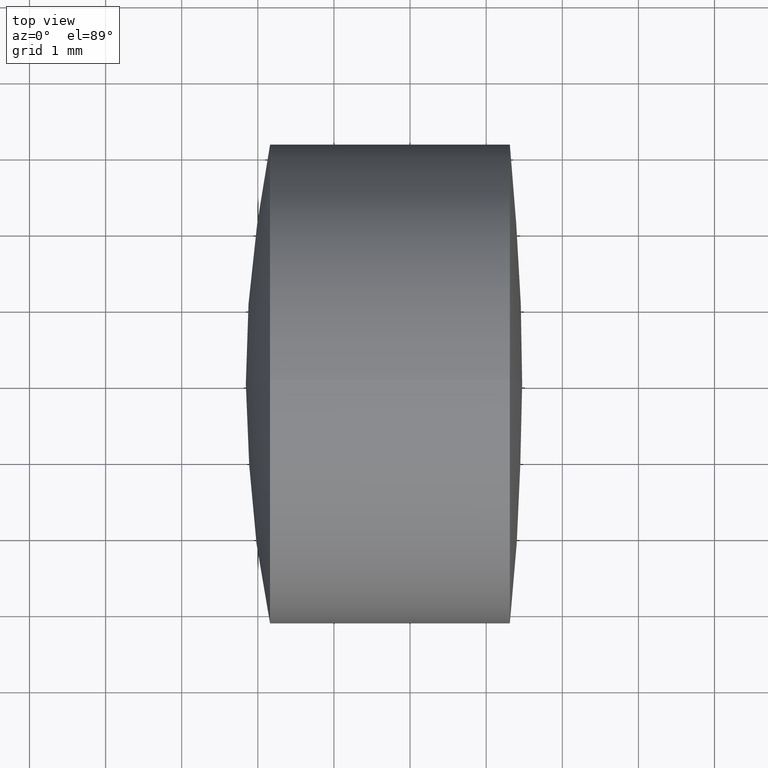
[diagram: clean part render]
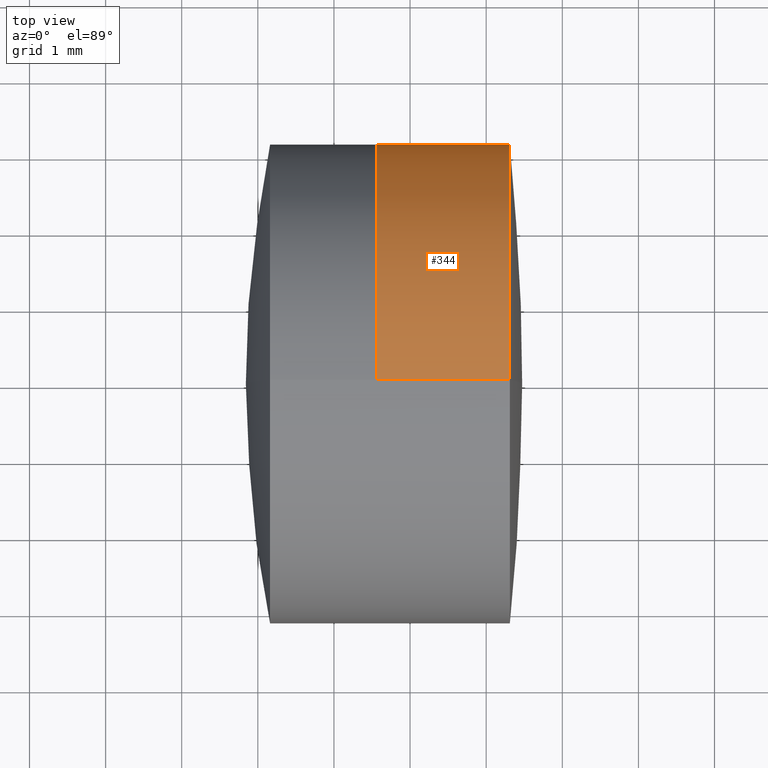
[diagram: same view with one face highlighted and labeled with its STEP entity id]
A machine part, top view. The second image highlights one B-rep face of the part: STEP entity #344.
In plain terms, the highlighted cylindrical surface (partial cylindrical patch) has radius 3.15 mm, axis along (-1, -0, -0).
Its self-contained STEP definition (entity closure, byte-faithful):
#1 = EDGE_CURVE ( 'NONE', #43, #34, #5, .T. ) ;
#5 = LINE ( 'NONE', #149, #148 ) ;
#32 = DIRECTION ( 'NONE',  ( -1.000000000000000000, -0.0000000000000000000, -0.0000000000000000000 ) ) ;
#34 = VERTEX_POINT ( 'NONE', #209 ) ;
#43 = VERTEX_POINT ( 'NONE', #104 ) ;
#58 = DIRECTION ( 'NONE',  ( -1.000000000000000000, -0.0000000000000000000, -0.0000000000000000000 ) ) ;
#61 = VERTEX_POINT ( 'NONE', #274 ) ;
#75 = CARTESIAN_POINT ( 'NONE',  ( -0.5519199926577972300, 0.0000000000000000000, 3.149999999999994100 ) ) ;
#104 = CARTESIAN_POINT ( 'NONE',  ( 10.31087431670144000, 3.857637417314154800E-016, -3.149999999999993700 ) ) ;
#119 = EDGE_CURVE ( 'NONE', #61, #43, #247, .T. ) ;
#120 = DIRECTION ( 'NONE',  ( -1.000000000000000000, -0.0000000000000000000, -0.0000000000000000000 ) ) ;
#139 = EDGE_LOOP ( 'NONE', ( #331, #144, #212, #191 ) ) ;
#144 = ORIENTED_EDGE ( 'NONE', *, *, #1, .T. ) ;
#147 = AXIS2_PLACEMENT_3D ( 'NONE', #288, #32, #252 ) ;
#148 = VECTOR ( 'NONE', #161, 1000.000000000000000 ) ;
#149 = CARTESIAN_POINT ( 'NONE',  ( -0.5519199926577972300, 3.857637417314155300E-016, -3.149999999999994100 ) ) ;
#161 = DIRECTION ( 'NONE',  ( -1.000000000000000000, -0.0000000000000000000, -0.0000000000000000000 ) ) ;
#165 = EDGE_CURVE ( 'NONE', #326, #34, #325, .T. ) ;
#175 = CARTESIAN_POINT ( 'NONE',  ( 8.563134654860508700, 0.0000000000000000000, 0.0000000000000000000 ) ) ;
#186 = DIRECTION ( 'NONE',  ( -1.000000000000000000, -0.0000000000000000000, -0.0000000000000000000 ) ) ;
#189 = CARTESIAN_POINT ( 'NONE',  ( 8.563134654860508700, 0.0000000000000000000, 3.149999999999994100 ) ) ;
#191 = ORIENTED_EDGE ( 'NONE', *, *, #323, .F. ) ;
#197 = FACE_OUTER_BOUND ( 'NONE', #139, .T. ) ;
#205 = DIRECTION ( 'NONE',  ( 0.0000000000000000000, 0.0000000000000000000, 1.000000000000000000 ) ) ;
#209 = CARTESIAN_POINT ( 'NONE',  ( 8.563134654860508700, 3.857637417314155300E-016, -3.149999999999994100 ) ) ;
#212 = ORIENTED_EDGE ( 'NONE', *, *, #165, .F. ) ;
#213 = AXIS2_PLACEMENT_3D ( 'NONE', #316, #186, #270 ) ;
#247 = CIRCLE ( 'NONE', #147, 3.149999999999993700 ) ;
#252 = DIRECTION ( 'NONE',  ( 0.0000000000000000000, 0.0000000000000000000, 1.000000000000000000 ) ) ;
#268 = AXIS2_PLACEMENT_3D ( 'NONE', #175, #58, #205 ) ;
#270 = DIRECTION ( 'NONE',  ( 0.0000000000000000000, 0.0000000000000000000, 1.000000000000000000 ) ) ;
#274 = CARTESIAN_POINT ( 'NONE',  ( 10.31087431670144000, 0.0000000000000000000, 3.149999999999993700 ) ) ;
#285 = VECTOR ( 'NONE', #120, 1000.000000000000000 ) ;
#288 = CARTESIAN_POINT ( 'NONE',  ( 10.31087431670144000, 0.0000000000000000000, 0.0000000000000000000 ) ) ;
#299 = CYLINDRICAL_SURFACE ( 'NONE', #213, 3.149999999999994100 ) ;
#300 = LINE ( 'NONE', #75, #285 ) ;
#316 = CARTESIAN_POINT ( 'NONE',  ( -0.5519199926577972300, 0.0000000000000000000, 0.0000000000000000000 ) ) ;
#323 = EDGE_CURVE ( 'NONE', #61, #326, #300, .T. ) ;
#325 = CIRCLE ( 'NONE', #268, 3.149999999999994100 ) ;
#326 = VERTEX_POINT ( 'NONE', #189 ) ;
#331 = ORIENTED_EDGE ( 'NONE', *, *, #119, .T. ) ;
#344 = ADVANCED_FACE ( 'NONE', ( #197 ), #299, .T. ) ;